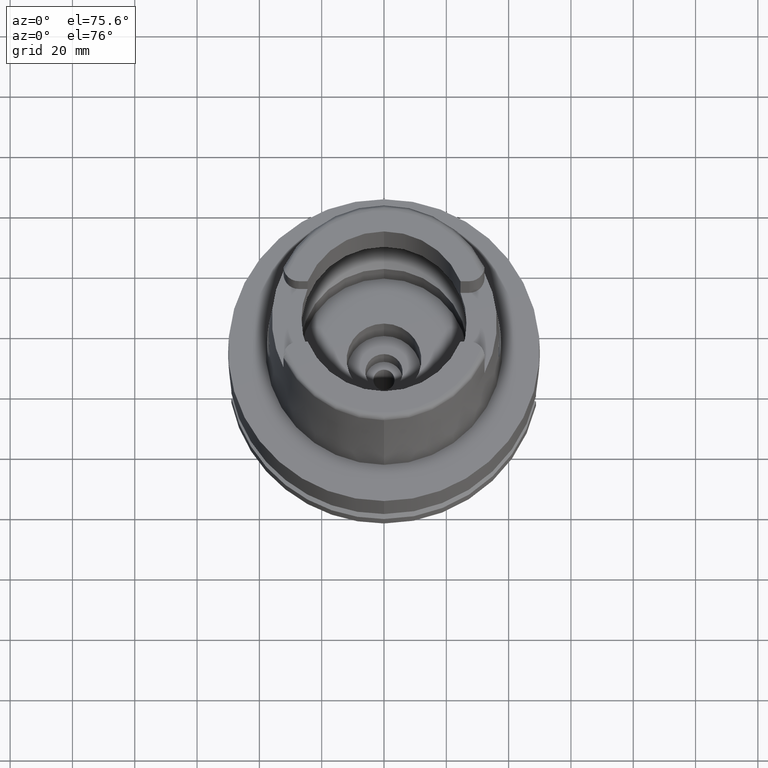
[diagram: clean part render]
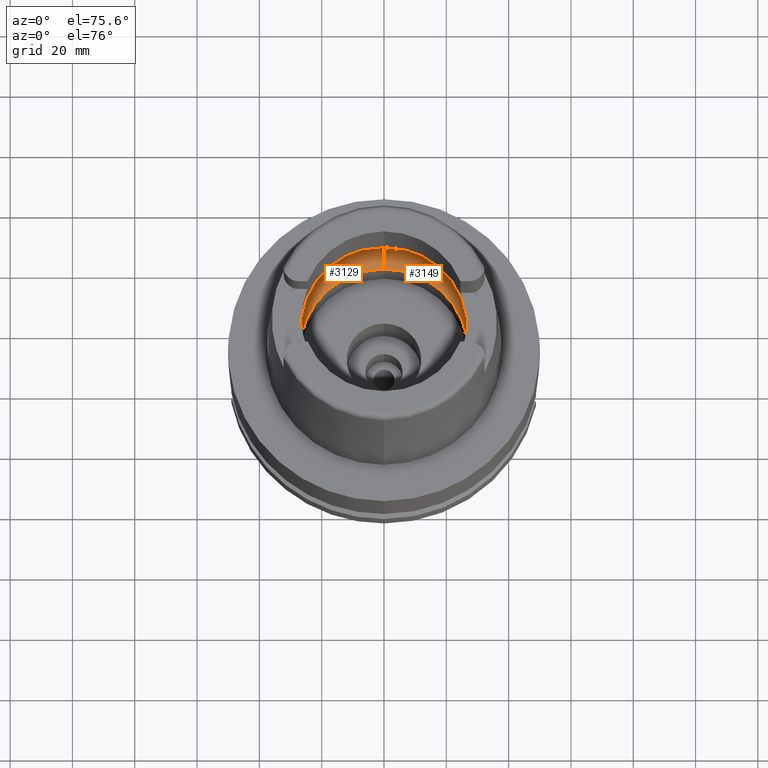
[diagram: same view with one multi-face feature highlighted, each face labeled with its STEP entity id]
A machine part, auxiliary view. The highlighted faces form ONE feature: a constant-radius fillet chain: 2 tangent blend faces with common blend radius 12 mm. The faces share edges in the B-rep.
Their STEP definitions:
[1] entity #3129 (Torus):
#580=CARTESIAN_POINT('',(-3.140918884336E1,-2.390158196044E0,9.496624327026E0));
#624=CARTESIAN_POINT('',(-3.140918884336E1,-2.390158196044E0,9.496624327026E0));
#625=CARTESIAN_POINT('',(-3.142817545704E1,-2.140654152533E0,9.388262810390E0));
#626=CARTESIAN_POINT('',(-3.145843235401E1,-1.626121130666E0,9.205188134635E0));
#627=CARTESIAN_POINT('',(-3.148416659375E1,-8.216262390445E-1,
9.037606438216E0));
#628=CARTESIAN_POINT('',(-3.148971910754E1,-2.740811097498E-1,9.E0));
#629=CARTESIAN_POINT('',(-3.148971910754E1,0.E0,9.E0));
#634=CARTESIAN_POINT('',(-3.148971910754E1,0.E0,9.E0));
#635=CARTESIAN_POINT('',(-3.148971910754E1,2.740813517952E-1,9.E0));
#636=CARTESIAN_POINT('',(-3.148416661469E1,8.216269012394E-1,9.037606318337E0));
#637=CARTESIAN_POINT('',(-3.145843209623E1,1.626127188331E0,9.205189758010E0));
#638=CARTESIAN_POINT('',(-3.142817526839E1,2.140656631637E0,9.388263887083E0));
#639=CARTESIAN_POINT('',(-3.140918884336E1,2.390158196044E0,9.496624327026E0));
#644=CARTESIAN_POINT('',(0.E0,0.E0,9.496624327026E0));
#645=DIRECTION('',(0.E0,0.E0,-1.E0));
#646=DIRECTION('',(-9.971171061384E-1,7.587803796965E-2,0.E0));
#647=AXIS2_PLACEMENT_3D('',#644,#645,#646);
#652=CARTESIAN_POINT('',(0.E0,0.E0,4.993178413026E-2));
#653=DIRECTION('',(0.E0,0.E0,1.E0));
#654=DIRECTION('',(0.E0,1.E0,0.E0));
#655=AXIS2_PLACEMENT_3D('',#652,#653,#654);
#660=CARTESIAN_POINT('',(0.E0,-1.95E1,9.496624327026E0));
#661=DIRECTION('',(-1.E0,0.E0,0.E0));
#662=DIRECTION('',(0.E0,-6.166666666667E-1,-7.872243785746E-1));
#663=AXIS2_PLACEMENT_3D('',#660,#661,#662);
#668=CARTESIAN_POINT('',(0.E0,0.E0,9.496624327026E0));
#669=DIRECTION('',(0.E0,0.E0,-1.E0));
#670=DIRECTION('',(0.E0,-1.E0,0.E0));
#671=AXIS2_PLACEMENT_3D('',#668,#669,#670);
#702=CARTESIAN_POINT('',(0.E0,1.95E1,9.496624327026E0));
#703=DIRECTION('',(1.E0,0.E0,0.E0));
#704=DIRECTION('',(0.E0,6.166666666667E-1,-7.872243785746E-1));
#705=AXIS2_PLACEMENT_3D('',#702,#703,#704);
#2463=VERTEX_POINT('',#580);
#2464=CARTESIAN_POINT('',(0.E0,-3.15E1,9.496624327026E0));
#2465=VERTEX_POINT('',#2464);
#2466=CARTESIAN_POINT('',(0.E0,3.15E1,9.496624327026E0));
#2467=VERTEX_POINT('',#2466);
#2468=CARTESIAN_POINT('',(-3.140918884336E1,2.390158196044E0,9.496624327026E0));
#2469=VERTEX_POINT('',#2468);
#2470=CARTESIAN_POINT('',(-3.148971910754E1,0.E0,9.E0));
#2471=VERTEX_POINT('',#2470);
#2476=CARTESIAN_POINT('',(0.E0,2.69E1,4.993178413025E-2));
#2477=VERTEX_POINT('',#2476);
#2478=CARTESIAN_POINT('',(0.E0,-2.69E1,4.993178413026E-2));
#2479=VERTEX_POINT('',#2478);
#3112=CARTESIAN_POINT('',(0.E0,0.E0,9.496624327026E0));
#3113=DIRECTION('',(0.E0,0.E0,1.E0));
#3114=DIRECTION('',(0.E0,1.E0,0.E0));
#3115=AXIS2_PLACEMENT_3D('',#3112,#3113,#3114);
#3116=TOROIDAL_SURFACE('',#3115,1.95E1,1.2E1);
#3117=ORIENTED_EDGE('',*,*,#3093,.T.);
#3118=ORIENTED_EDGE('',*,*,#3104,.T.);
#3119=ORIENTED_EDGE('',*,*,#3075,.T.);
#3121=ORIENTED_EDGE('',*,*,#3120,.F.);
#3123=ORIENTED_EDGE('',*,*,#3122,.T.);
#3125=ORIENTED_EDGE('',*,*,#3124,.T.);
#3126=ORIENTED_EDGE('',*,*,#3068,.T.);
#3127=EDGE_LOOP('',(#3117,#3118,#3119,#3121,#3123,#3125,#3126));
#3128=FACE_OUTER_BOUND('',#3127,.F.);
#630=B_SPLINE_CURVE_WITH_KNOTS('',3,(#624,#625,#626,#627,#628,#629),
.UNSPECIFIED.,.F.,.F.,(4,1,1,4),(0.E0,3.333333333333E-1,6.666666666667E-1,1.E0),
.UNSPECIFIED.);
#640=B_SPLINE_CURVE_WITH_KNOTS('',3,(#634,#635,#636,#637,#638,#639),
.UNSPECIFIED.,.F.,.F.,(4,1,1,4),(0.E0,3.333333333333E-1,6.666666666667E-1,1.E0),
.UNSPECIFIED.);
#648=CIRCLE('',#647,3.15E1);
#656=CIRCLE('',#655,2.69E1);
#664=CIRCLE('',#663,1.2E1);
#672=CIRCLE('',#671,3.15E1);
#706=CIRCLE('',#705,1.2E1);
#3068=EDGE_CURVE('',#2465,#2463,#672,.T.);
#3075=EDGE_CURVE('',#2469,#2467,#648,.T.);
#3093=EDGE_CURVE('',#2463,#2471,#630,.T.);
#3104=EDGE_CURVE('',#2471,#2469,#640,.T.);
#3120=EDGE_CURVE('',#2477,#2467,#706,.T.);
#3122=EDGE_CURVE('',#2477,#2479,#656,.T.);
#3124=EDGE_CURVE('',#2479,#2465,#664,.T.);
#3129=ADVANCED_FACE('',(#3128),#3116,.F.);
[2] entity #3149 (Torus):
#660=CARTESIAN_POINT('',(0.E0,-1.95E1,9.496624327026E0));
#661=DIRECTION('',(-1.E0,0.E0,0.E0));
#662=DIRECTION('',(0.E0,-6.166666666667E-1,-7.872243785746E-1));
#663=AXIS2_PLACEMENT_3D('',#660,#661,#662);
#676=CARTESIAN_POINT('',(3.148971910754E1,0.E0,9.E0));
#677=CARTESIAN_POINT('',(3.148971910754E1,-2.740816369241E-1,9.E0));
#678=CARTESIAN_POINT('',(3.148416657244E1,-8.216274657312E-1,9.037606582852E0));
#679=CARTESIAN_POINT('',(3.145843229729E1,-1.626122314408E0,9.205188491873E0));
#680=CARTESIAN_POINT('',(3.142817542026E1,-2.140654635827E0,9.388263020288E0));
#681=CARTESIAN_POINT('',(3.140918884336E1,-2.390158196044E0,9.496624327026E0));
#686=CARTESIAN_POINT('',(0.E0,0.E0,9.496624327026E0));
#687=DIRECTION('',(0.E0,0.E0,-1.E0));
#688=DIRECTION('',(9.971171061384E-1,-7.587803796965E-2,0.E0));
#689=AXIS2_PLACEMENT_3D('',#686,#687,#688);
#694=CARTESIAN_POINT('',(0.E0,0.E0,4.993178413025E-2));
#695=DIRECTION('',(0.E0,0.E0,1.E0));
#696=DIRECTION('',(0.E0,-1.E0,0.E0));
#697=AXIS2_PLACEMENT_3D('',#694,#695,#696);
#702=CARTESIAN_POINT('',(0.E0,1.95E1,9.496624327026E0));
#703=DIRECTION('',(1.E0,0.E0,0.E0));
#704=DIRECTION('',(0.E0,6.166666666667E-1,-7.872243785746E-1));
#705=AXIS2_PLACEMENT_3D('',#702,#703,#704);
#710=CARTESIAN_POINT('',(0.E0,0.E0,9.496624327026E0));
#711=DIRECTION('',(0.E0,0.E0,-1.E0));
#712=DIRECTION('',(0.E0,1.E0,0.E0));
#713=AXIS2_PLACEMENT_3D('',#710,#711,#712);
#718=CARTESIAN_POINT('',(3.140918884336E1,2.390158196044E0,9.496624327026E0));
#719=CARTESIAN_POINT('',(3.142817530553E1,2.140656143518E0,9.388263675090E0));
#720=CARTESIAN_POINT('',(3.145843215351E1,1.626125992770E0,9.205189397203E0));
#721=CARTESIAN_POINT('',(3.148416663622E1,8.216256622719E-1,9.037606172252E0));
#722=CARTESIAN_POINT('',(3.148971910754E1,2.740808193429E-1,9.E0));
#723=CARTESIAN_POINT('',(3.148971910754E1,0.E0,9.E0));
#735=CARTESIAN_POINT('',(3.140918884336E1,-2.390158196044E0,9.496624327026E0));
#766=CARTESIAN_POINT('',(3.140918884336E1,2.390158196044E0,9.496624327026E0));
#2464=CARTESIAN_POINT('',(0.E0,-3.15E1,9.496624327026E0));
#2465=VERTEX_POINT('',#2464);
#2466=CARTESIAN_POINT('',(0.E0,3.15E1,9.496624327026E0));
#2467=VERTEX_POINT('',#2466);
#2472=VERTEX_POINT('',#735);
#2474=VERTEX_POINT('',#676);
#2475=VERTEX_POINT('',#766);
#2476=CARTESIAN_POINT('',(0.E0,2.69E1,4.993178413025E-2));
#2477=VERTEX_POINT('',#2476);
#2478=CARTESIAN_POINT('',(0.E0,-2.69E1,4.993178413026E-2));
#2479=VERTEX_POINT('',#2478);
#3130=CARTESIAN_POINT('',(0.E0,0.E0,9.496624327026E0));
#3131=DIRECTION('',(0.E0,0.E0,1.E0));
#3132=DIRECTION('',(0.E0,1.E0,0.E0));
#3133=AXIS2_PLACEMENT_3D('',#3130,#3131,#3132);
#3134=TOROIDAL_SURFACE('',#3133,1.95E1,1.2E1);
#3136=ORIENTED_EDGE('',*,*,#3135,.T.);
#3138=ORIENTED_EDGE('',*,*,#3137,.T.);
#3139=ORIENTED_EDGE('',*,*,#3124,.F.);
#3141=ORIENTED_EDGE('',*,*,#3140,.T.);
#3142=ORIENTED_EDGE('',*,*,#3120,.T.);
#3144=ORIENTED_EDGE('',*,*,#3143,.T.);
#3146=ORIENTED_EDGE('',*,*,#3145,.T.);
#3147=EDGE_LOOP('',(#3136,#3138,#3139,#3141,#3142,#3144,#3146));
#3148=FACE_OUTER_BOUND('',#3147,.F.);
#664=CIRCLE('',#663,1.2E1);
#682=B_SPLINE_CURVE_WITH_KNOTS('',3,(#676,#677,#678,#679,#680,#681),
.UNSPECIFIED.,.F.,.F.,(4,1,1,4),(0.E0,3.333333333333E-1,6.666666666667E-1,1.E0),
.UNSPECIFIED.);
#690=CIRCLE('',#689,3.15E1);
#698=CIRCLE('',#697,2.69E1);
#706=CIRCLE('',#705,1.2E1);
#714=CIRCLE('',#713,3.15E1);
#724=B_SPLINE_CURVE_WITH_KNOTS('',3,(#718,#719,#720,#721,#722,#723),
.UNSPECIFIED.,.F.,.F.,(4,1,1,4),(0.E0,3.333333333333E-1,6.666666666667E-1,1.E0),
.UNSPECIFIED.);
#3120=EDGE_CURVE('',#2477,#2467,#706,.T.);
#3124=EDGE_CURVE('',#2479,#2465,#664,.T.);
#3135=EDGE_CURVE('',#2474,#2472,#682,.T.);
#3137=EDGE_CURVE('',#2472,#2465,#690,.T.);
#3140=EDGE_CURVE('',#2479,#2477,#698,.T.);
#3143=EDGE_CURVE('',#2467,#2475,#714,.T.);
#3145=EDGE_CURVE('',#2475,#2474,#724,.T.);
#3149=ADVANCED_FACE('',(#3148),#3134,.F.);